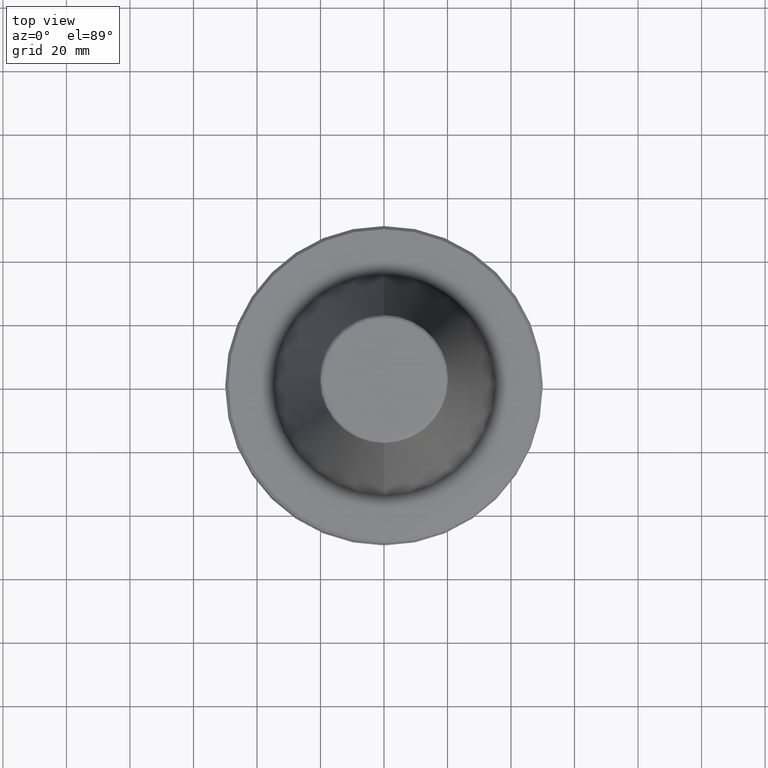
[diagram: clean part render]
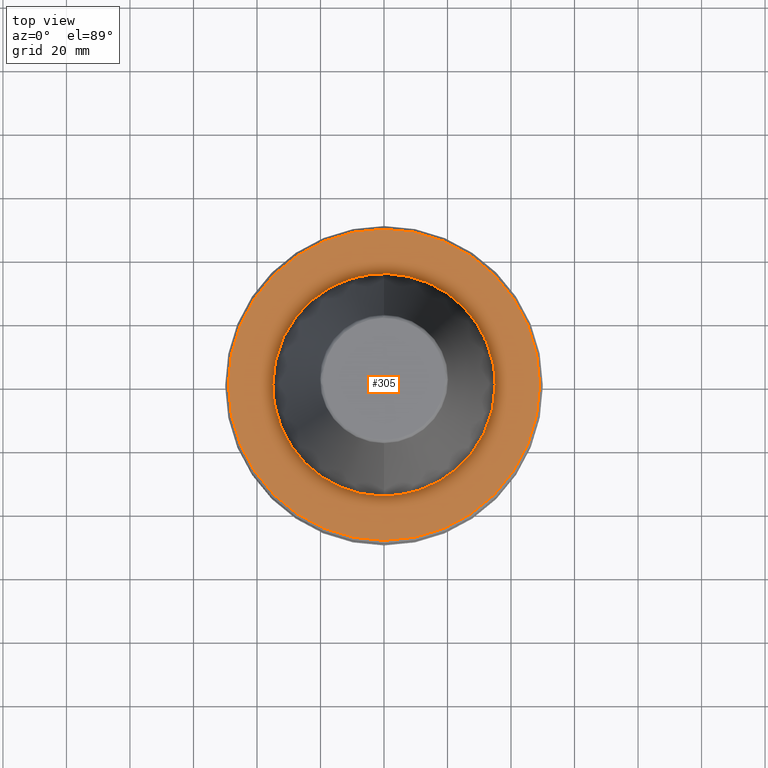
[diagram: same view with one face highlighted and labeled with its STEP entity id]
A machine part, top view. The second image highlights one B-rep face of the part: STEP entity #305.
In plain terms, the highlighted planar face has unit normal (0, 0, -1).
Its self-contained STEP definition (entity closure, byte-faithful):
#5 = CARTESIAN_POINT ( 'NONE',  ( -32.34925436470648200, -13.36287488642944300, -3.000000000000001800 ) ) ;
#28 = CARTESIAN_POINT ( 'NONE',  ( -31.73446283932258200, -14.78360021478252100, -3.000000000000002700 ) ) ;
#34 = CARTESIAN_POINT ( 'NONE',  ( 16.63600605653752500, -30.83358045351049600, -3.000000000000002700 ) ) ;
#38 = CARTESIAN_POINT ( 'NONE',  ( 6.612619497362948600, -34.36979439948081000, -3.000000000000002700 ) ) ;
#44 = CARTESIAN_POINT ( 'NONE',  ( -6.302931150564769600, -34.42781250607536200, -3.000000000000003100 ) ) ;
#50 = CARTESIAN_POINT ( 'NONE',  ( -17.39610456660242100, -30.38102309290583100, -3.000000000000003100 ) ) ;
#63 = CARTESIAN_POINT ( 'NONE',  ( -34.42781351200215300, 6.302925715124958500, -3.000000000000003600 ) ) ;
#64 = CARTESIAN_POINT ( 'NONE',  ( 32.89659264522356400, -11.95665119277901800, -3.000000000000003100 ) ) ;
#65 = CARTESIAN_POINT ( 'NONE',  ( -30.38102309288202100, 17.39610456663885400, -3.000000000000003100 ) ) ;
#66 = CARTESIAN_POINT ( 'NONE',  ( -19.40434002402238500, 29.12865266611658700, -3.000000000000003600 ) ) ;
#74 = CARTESIAN_POINT ( 'NONE',  ( -10.22175398637455700, 33.50799961645684300, -3.000000000000003600 ) ) ;
#77 = CARTESIAN_POINT ( 'NONE',  ( 5.446912988100579300, 34.57544831626905300, -3.000000000000001800 ) ) ;
#80 = CARTESIAN_POINT ( 'NONE',  ( 12.81734826737285200, 32.56864976374770000, -3.000000000000003100 ) ) ;
#84 = CARTESIAN_POINT ( 'NONE',  ( 26.81217425547059100, 22.55396811743030800, -3.000000000000002700 ) ) ;
#90 = CARTESIAN_POINT ( 'NONE',  ( 32.48792099547436200, 13.02062589573488800, -3.000000000000003100 ) ) ;
#94 = EDGE_CURVE ( 'NONE', #1114, #841, #239, .T. ) ;
#96 = CARTESIAN_POINT ( 'NONE',  ( 35.00000000000001400, 2.140594193977155800, -3.000000000000004400 ) ) ;
#98 = CARTESIAN_POINT ( 'NONE',  ( 20.88742035074269100, -28.09581514101870400, -3.000000000000002700 ) ) ;
#105 = CARTESIAN_POINT ( 'NONE',  ( 22.55396811736761400, -26.81217425553328200, -3.000000000000003100 ) ) ;
#109 = CARTESIAN_POINT ( 'NONE',  ( -19.02850814313348600, -29.37552809603244300, -3.000000000000003100 ) ) ;
#110 = CARTESIAN_POINT ( 'NONE',  ( 23.89432606865464900, -25.60312232445126700, -3.000000000000003100 ) ) ;
#112 = CARTESIAN_POINT ( 'NONE',  ( 35.00000000000000000, 0.0000000000000000000, -3.000000000000002700 ) ) ;
#113 = CARTESIAN_POINT ( 'NONE',  ( 34.45762826542809200, -6.138426652641929800, -3.000000000000003600 ) ) ;
#119 = CARTESIAN_POINT ( 'NONE',  ( -19.08913306739620100, -29.33616850064283500, -3.000000000000001800 ) ) ;
#125 = CARTESIAN_POINT ( 'NONE',  ( -32.15012102423657600, -13.83944246703690000, -3.000000000000002700 ) ) ;
#129 = CARTESIAN_POINT ( 'NONE',  ( 13.83944246709859300, -32.15012102419817100, -3.000000000000003100 ) ) ;
#134 = CIRCLE ( 'NONE', #1171, 49.00000000000000000 ) ;
#138 = CARTESIAN_POINT ( 'NONE',  ( 6.438440412634939500, -34.40273028201292500, -3.000000000000002200 ) ) ;
#140 = CARTESIAN_POINT ( 'NONE',  ( -7.485016363404477100, -34.20909465296822600, -3.000000000000002700 ) ) ;
#141 = CARTESIAN_POINT ( 'NONE',  ( -28.70590565858409700, -20.02844726154317800, -3.000000000000003600 ) ) ;
#149 = CARTESIAN_POINT ( 'NONE',  ( -34.20909465294723600, 7.485016363474851000, -3.000000000000003100 ) ) ;
#150 = CARTESIAN_POINT ( 'NONE',  ( 32.63325647696483100, -12.65227526414434500, -3.000000000000003100 ) ) ;
#153 = CARTESIAN_POINT ( 'NONE',  ( -29.57507047212097700, 18.71779649742729400, -3.000000000000002200 ) ) ;
#162 = CARTESIAN_POINT ( 'NONE',  ( -19.21422376116883500, 29.25438685317628500, -3.000000000000003100 ) ) ;
#164 = CARTESIAN_POINT ( 'NONE',  ( -7.341879713376658700, 34.22344429636625300, -3.000000000000003100 ) ) ;
#167 = CARTESIAN_POINT ( 'NONE',  ( 6.138445227317941300, 34.45762482785007600, -3.000000000000003100 ) ) ;
#172 = CARTESIAN_POINT ( 'NONE',  ( 13.98318441544959400, 32.10714343115270700, -3.000000000000003100 ) ) ;
#174 = CARTESIAN_POINT ( 'NONE',  ( 28.70590565853973100, 20.02844726159348800, -3.000000000000002200 ) ) ;
#175 = CARTESIAN_POINT ( 'NONE',  ( 32.52953211022760600, 12.91630117124322500, -3.000000000000002700 ) ) ;
#177 = CARTESIAN_POINT ( 'NONE',  ( 32.10714343114872800, -13.98318441546657300, -3.000000000000002700 ) ) ;
#185 = CARTESIAN_POINT ( 'NONE',  ( 34.49823719593175000, -5.908023099575659700, -3.000000000000002700 ) ) ;
#190 = CARTESIAN_POINT ( 'NONE',  ( 34.57546073590585000, -5.446845879593706000, -3.000000000000003600 ) ) ;
#192 = CARTESIAN_POINT ( 'NONE',  ( -21.17500700316109500, -27.97242343697145700, -3.000000000000002700 ) ) ;
#201 = CARTESIAN_POINT ( 'NONE',  ( -34.32245596807793900, -6.856119198155432100, -3.000000000000003100 ) ) ;
#204 = DIRECTION ( 'NONE',  ( -1.000000000000000000, 0.0000000000000000000, -0.0000000000000000000 ) ) ;
#205 = CARTESIAN_POINT ( 'NONE',  ( -32.48792099547606700, -13.02062589572952200, -3.000000000000002200 ) ) ;
#207 = EDGE_CURVE ( 'NONE', #841, #1114, #1304, .T. ) ;
#214 = CARTESIAN_POINT ( 'NONE',  ( 26.45755988727818700, -23.03996737568499900, -3.000000000000002700 ) ) ;
#217 = CARTESIAN_POINT ( 'NONE',  ( 13.12346891945913500, -32.44664709693408600, -3.000000000000003600 ) ) ;
#219 = CARTESIAN_POINT ( 'NONE',  ( 4.263321196662106500, -34.80526173061283400, -3.000000000000001800 ) ) ;
#220 = CARTESIAN_POINT ( 'NONE',  ( -11.02330659132829500, -33.22749701707316900, -3.000000000000001800 ) ) ;
#226 = CARTESIAN_POINT ( 'NONE',  ( -29.12865266611660100, -19.40434002402422600, -3.000000000000002700 ) ) ;
#238 = CARTESIAN_POINT ( 'NONE',  ( -33.22749701704564300, 11.02330659142064700, -3.000000000000002700 ) ) ;
#239 = B_SPLINE_CURVE_WITH_KNOTS ( 'NONE', 3,
 ( #112, #625, #1358, #827, #190, #185, #113, #1115, #441, #1223, #259, #1037, #360, #64, #776, #150, #348, #1136, #464, #177, #920, #268, #244, #1017, #342, #830, #705, #1373, #214, #110, #105, #98, #298, #959, #1190, #525, #1289, #628, #34, #739, #129, #851, #217, #964, #300, #1084, #414, #1192, #527, #1297, #632, #38, #745, #138, #855, #219, #972, #303, #1089, #422, #1197, #532, #1300, #636, #44, #748, #140, #863, #220, #977, #309, #1093, #425, #1200, #539, #1305, #638, #50, #751, #279, #709, #109, #119, #192, #939, #944, #1329, #563, #141, #868, #226, #981, #311, #512, #950, #28, #125, #5, #838, #205, #821, #1236, #604, #1280, #617, #1071, #201, #833, #1179, #845, #406, #731, #403, #1186 ),
 .UNSPECIFIED., .F., .F.,
 ( 4, 1, 1, 1, 1, 1, 2, 2, 1, 1, 1, 1, 1, 2, 2, 1, 1, 1, 1, 2, 2, 2, 1, 1, 1, 1, 2, 2, 1, 1, 1, 1, 1, 2, 2, 1, 1, 1, 1, 1, 2, 2, 2, 1, 1, 1, 1, 1, 2, 2, 1, 1, 1, 1, 1, 2, 2, 1, 1, 1, 1, 2, 2, 2, 1, 1, 1, 1, 2, 2, 1, 1, 1, 1, 1, 2, 2, 1, 1, 1, 1, 1, 2, 2, 4 ),
 ( 0.0000000000000000000, 0.03124999999999663500, 0.04687499999999496200, 0.05468749999999411600, 0.05859374999999367900, 0.06054687499999345700, 0.06152343749999333200, 0.06249999999999320700, 0.09374999999998945300, 0.1093749999999875700, 0.1171874999999866100, 0.1210937499999861100, 0.1230468749999859300, 0.1240234374999858700, 0.1249999999999858000, 0.1562499999999837400, 0.1718749999999827600, 0.1796874999999822900, 0.1835937499999820700, 0.1855468749999819900, 0.1874999999999819000, 0.2499999999999803500, 0.2812499999999796300, 0.2968749999999792900, 0.3046874999999791800, 0.3085937499999790700, 0.3105468749999791300, 0.3124999999999791300, 0.3437499999999789600, 0.3593749999999787900, 0.3671874999999787400, 0.3710937499999786800, 0.3730468749999786300, 0.3740234374999786300, 0.3749999999999786300, 0.4062499999999783500, 0.4218749999999781800, 0.4296874999999780200, 0.4335937499999780200, 0.4355468749999780200, 0.4365234374999780200, 0.4374999999999780200, 0.4999999999999799000, 0.5312499999999809000, 0.5468749999999813500, 0.5546874999999815700, 0.5585937499999816800, 0.5605468749999816800, 0.5615234374999816800, 0.5624999999999816800, 0.5937499999999827900, 0.6093749999999832400, 0.6171874999999834600, 0.6210937499999836800, 0.6230468749999837900, 0.6240234374999837900, 0.6249999999999837900, 0.6562499999999863400, 0.6718749999999875700, 0.6796874999999883400, 0.6835937499999886800, 0.6855468749999887900, 0.6874999999999889000, 0.7499999999999902300, 0.7812499999999909000, 0.7968749999999912300, 0.8046874999999913400, 0.8085937499999915600, 0.8105468749999916700, 0.8124999999999917800, 0.8437499999999927800, 0.8593749999999931200, 0.8671874999999933400, 0.8710937499999934500, 0.8730468749999934500, 0.8740234374999934500, 0.8749999999999934500, 0.9062499999999948900, 0.9218749999999955600, 0.9296874999999958900, 0.9335937499999961100, 0.9355468749999963400, 0.9365234374999963400, 0.9374999999999963400, 1.000000000000000000 ),
 .UNSPECIFIED. ) ;
#241 = CARTESIAN_POINT ( 'NONE',  ( -29.37552809603019800, 19.02850814313690000, -3.000000000000003600 ) ) ;
#243 = CARTESIAN_POINT ( 'NONE',  ( -16.63600605646529500, 30.83358045356212400, -3.000000000000003600 ) ) ;
#244 = CARTESIAN_POINT ( 'NONE',  ( 29.84950969864552300, -18.28024207344085600, -3.000000000000003600 ) ) ;
#250 = CARTESIAN_POINT ( 'NONE',  ( -6.612619497348228800, 34.36979439948396500, -3.000000000000003600 ) ) ;
#254 = EDGE_CURVE ( 'NONE', #270, #395, #134, .T. ) ;
#255 = CARTESIAN_POINT ( 'NONE',  ( 6.302931150571177800, 34.42781250607494300, -3.000000000000003100 ) ) ;
#257 = CARTESIAN_POINT ( 'NONE',  ( 17.39610456662463300, 30.38102309288199300, -3.000000000000003100 ) ) ;
#259 = CARTESIAN_POINT ( 'NONE',  ( 34.20909465294850800, -7.485016363475470900, -3.000000000000004000 ) ) ;
#260 = CARTESIAN_POINT ( 'NONE',  ( 29.12865266610268500, 19.40434002404001000, -3.000000000000003100 ) ) ;
#265 = CARTESIAN_POINT ( 'NONE',  ( 33.50799961647769000, 10.22175398628584700, -3.000000000000003100 ) ) ;
#268 = CARTESIAN_POINT ( 'NONE',  ( 30.38102309287676000, -17.39610456664685500, -3.000000000000002200 ) ) ;
#270 = VERTEX_POINT ( 'NONE', #386 ) ;
#279 = CARTESIAN_POINT ( 'NONE',  ( -18.71779649741590400, -29.57507047212841700, -3.000000000000001800 ) ) ;
#298 = CARTESIAN_POINT ( 'NONE',  ( 20.02844726156606800, -28.70590565856717900, -3.000000000000003100 ) ) ;
#300 = CARTESIAN_POINT ( 'NONE',  ( 12.95201044294124100, -32.51533340697019300, -3.000000000000003100 ) ) ;
#303 = CARTESIAN_POINT ( 'NONE',  ( -1.070562519032676000, -34.99998377844058000, -3.000000000000002200 ) ) ;
#305 = ADVANCED_FACE ( 'NONE', ( #356, #393 ), #1068, .F. ) ;
#308 = EDGE_LOOP ( 'NONE', ( #1264, #524 ) ) ;
#309 = CARTESIAN_POINT ( 'NONE',  ( -12.42081813362705100, -32.72247880823924500, -3.000000000000002200 ) ) ;
#311 = CARTESIAN_POINT ( 'NONE',  ( -29.25438685317497400, -19.21422376117129400, -3.000000000000002200 ) ) ;
#316 = CARTESIAN_POINT ( 'NONE',  ( -35.00000000000000000, 5.347315839772332600E-015, -3.000000000000002700 ) ) ;
#325 = CARTESIAN_POINT ( 'NONE',  ( -32.72247880823064700, 12.42081813365590500, -3.000000000000002700 ) ) ;
#331 = CARTESIAN_POINT ( 'NONE',  ( -27.97242343694205100, 21.17500700320606600, -3.000000000000003100 ) ) ;
#340 = CARTESIAN_POINT ( 'NONE',  ( -13.83944246706697900, 32.15012102422075900, -3.000000000000002200 ) ) ;
#342 = CARTESIAN_POINT ( 'NONE',  ( 29.45559311873443400, -18.90435246569474300, -3.000000000000003100 ) ) ;
#346 = CARTESIAN_POINT ( 'NONE',  ( -6.438440412630628300, 34.40273028201387700, -3.000000000000003600 ) ) ;
#348 = CARTESIAN_POINT ( 'NONE',  ( 32.59455431797136500, -12.75133696150703600, -3.000000000000003600 ) ) ;
#351 = CARTESIAN_POINT ( 'NONE',  ( 7.485016363517791800, 34.20909465293439000, -3.000000000000003100 ) ) ;
#356 = FACE_BOUND ( 'NONE', #589, .T. ) ;
#357 = CARTESIAN_POINT ( 'NONE',  ( 18.71779649742284900, 29.57507047212097700, -3.000000000000003100 ) ) ;
#360 = CARTESIAN_POINT ( 'NONE',  ( 33.22749701704729800, -11.02330659142144900, -3.000000000000002200 ) ) ;
#363 = CARTESIAN_POINT ( 'NONE',  ( 29.25438685317584800, 19.21422376116857600, -3.000000000000003100 ) ) ;
#367 = CARTESIAN_POINT ( 'NONE',  ( 34.22344429637538400, 7.341879713337862200, -3.000000000000003100 ) ) ;
#383 = CARTESIAN_POINT ( 'NONE',  ( 0.0000000000000000000, -8.673617379884097100E-018, -2.999999999999988900 ) ) ;
#386 = CARTESIAN_POINT ( 'NONE',  ( 6.062001655779398500E-015, -49.00000000000000000, -2.999999999999989300 ) ) ;
#393 = FACE_OUTER_BOUND ( 'NONE', #308, .T. ) ;
#395 = VERTEX_POINT ( 'NONE', #1368 ) ;
#402 = AXIS2_PLACEMENT_3D ( 'NONE', #519, #514, #510 ) ;
#403 = CARTESIAN_POINT ( 'NONE',  ( -35.00000000000000700, -2.140594194092448900, -3.000000000000002700 ) ) ;
#406 = CARTESIAN_POINT ( 'NONE',  ( -34.40960131014864500, -6.401600746334303900, -3.000000000000002700 ) ) ;
#414 = CARTESIAN_POINT ( 'NONE',  ( 11.82775206430019400, -32.96046019979726800, -3.000000000000003100 ) ) ;
#422 = CARTESIAN_POINT ( 'NONE',  ( -4.523126027250998300, -34.71390924092476400, -3.000000000000002700 ) ) ;
#425 = CARTESIAN_POINT ( 'NONE',  ( -12.75133696149833700, -32.59455431797377400, -3.000000000000002700 ) ) ;
#439 = CARTESIAN_POINT ( 'NONE',  ( -34.71393053172151600, 4.523010984241379300, -3.000000000000003100 ) ) ;
#441 = CARTESIAN_POINT ( 'NONE',  ( 34.42781351200215300, -6.302925715124505500, -3.000000000000003600 ) ) ;
#447 = CARTESIAN_POINT ( 'NONE',  ( -32.59455431797121600, 12.75133696150694700, -3.000000000000002700 ) ) ;
#454 = CARTESIAN_POINT ( 'NONE',  ( -23.89432606861711500, 25.60312232447323300, -3.000000000000003100 ) ) ;
#456 = CARTESIAN_POINT ( 'NONE',  ( -13.12346891945037800, 32.44664709694033200, -3.000000000000003100 ) ) ;
#461 = CARTESIAN_POINT ( 'NONE',  ( -4.263321196565859100, 34.80526173062684600, -3.000000000000002200 ) ) ;
#464 = CARTESIAN_POINT ( 'NONE',  ( 32.55619825924868100, -12.84894391026552900, -3.000000000000002200 ) ) ;
#470 = CARTESIAN_POINT ( 'NONE',  ( 11.02330659147702200, 33.22749701702875300, -3.000000000000002700 ) ) ;
#475 = CARTESIAN_POINT ( 'NONE',  ( 19.02850814313557100, 29.37552809603019800, -3.000000000000003100 ) ) ;
#477 = CARTESIAN_POINT ( 'NONE',  ( 30.83358045357390900, 16.63600605647301800, -3.000000000000002700 ) ) ;
#481 = CARTESIAN_POINT ( 'NONE',  ( 34.36979439948648000, 6.612619497337481000, -3.000000000000003600 ) ) ;
#494 = DIRECTION ( 'NONE',  ( 0.0000000000000000000, 1.000000000000000000, 8.850629979473505400E-018 ) ) ;
#509 = CARTESIAN_POINT ( 'NONE',  ( 0.0000000000000000000, 35.00000000000000000, -3.000000000000002700 ) ) ;
#510 = DIRECTION ( 'NONE',  ( 0.0000000000000000000, 1.000000000000000000, 8.850629979473505400E-018 ) ) ;
#512 = CARTESIAN_POINT ( 'NONE',  ( -29.94213952429791100, -18.16222308541903300, -3.000000000000003100 ) ) ;
#514 = DIRECTION ( 'NONE',  ( 0.0000000000000000000, 8.673617379884035500E-018, -1.000000000000000000 ) ) ;
#519 = CARTESIAN_POINT ( 'NONE',  ( 0.0000000000000000000, -8.673617379884097100E-018, -2.999999999999988900 ) ) ;
#524 = ORIENTED_EDGE ( 'NONE', *, *, #254, .F. ) ;
#525 = CARTESIAN_POINT ( 'NONE',  ( 19.27857015345090000, -29.21203108228558400, -3.000000000000001800 ) ) ;
#527 = CARTESIAN_POINT ( 'NONE',  ( 8.308445198443276800, -34.00808171725491700, -3.000000000000002700 ) ) ;
#532 = CARTESIAN_POINT ( 'NONE',  ( -5.908059050519048200, -34.49823054255777100, -3.000000000000002700 ) ) ;
#539 = CARTESIAN_POINT ( 'NONE',  ( -12.84894391026660200, -32.55619825924799900, -3.000000000000003600 ) ) ;
#541 = ORIENTED_EDGE ( 'NONE', *, *, #207, .T. ) ;
#560 = CARTESIAN_POINT ( 'NONE',  ( -34.49823719593176500, 5.908023099578546300, -3.000000000000003600 ) ) ;
#563 = CARTESIAN_POINT ( 'NONE',  ( -28.09581514104771900, -20.88742035070345100, -3.000000000000002700 ) ) ;
#565 = CARTESIAN_POINT ( 'NONE',  ( -32.55619825924858200, 12.84894391026571500, -3.000000000000003100 ) ) ;
#570 = CARTESIAN_POINT ( 'NONE',  ( -20.88742035069342500, 28.09581514104753500, -3.000000000000003100 ) ) ;
#573 = CARTESIAN_POINT ( 'NONE',  ( -12.95201044293867400, 32.51533340697202600, -3.000000000000003600 ) ) ;
#576 = CARTESIAN_POINT ( 'NONE',  ( 1.070562519136141000, 34.99998377843357400, -3.000000000000002700 ) ) ;
#580 = CARTESIAN_POINT ( 'NONE',  ( 12.42081813367351900, 32.72247880822539700, -3.000000000000002700 ) ) ;
#583 = CARTESIAN_POINT ( 'NONE',  ( 21.17500700307416400, 27.97242343704284200, -3.000000000000003100 ) ) ;
#589 = EDGE_LOOP ( 'NONE', ( #993, #541 ) ) ;
#590 = CARTESIAN_POINT ( 'NONE',  ( 32.15012102422590300, 13.83944246707036300, -3.000000000000003100 ) ) ;
#596 = CARTESIAN_POINT ( 'NONE',  ( 34.40273028201460200, 6.438440412627483200, -3.000000000000001300 ) ) ;
#604 = CARTESIAN_POINT ( 'NONE',  ( -32.96046019979995400, -11.82775206424915600, -3.000000000000003100 ) ) ;
#617 = CARTESIAN_POINT ( 'NONE',  ( -34.00808171725844200, -8.308445198376258400, -3.000000000000002700 ) ) ;
#625 = CARTESIAN_POINT ( 'NONE',  ( 35.00000000000000700, -1.070474867208797800, -3.000000000000004000 ) ) ;
#628 = CARTESIAN_POINT ( 'NONE',  ( 18.16222308549961200, -29.94213952424776100, -3.000000000000003100 ) ) ;
#632 = CARTESIAN_POINT ( 'NONE',  ( 6.856119198176373600, -34.32245596807681000, -3.000000000000003100 ) ) ;
#636 = CARTESIAN_POINT ( 'NONE',  ( -6.237142119956468300, -34.43979448701008300, -3.000000000000003600 ) ) ;
#638 = CARTESIAN_POINT ( 'NONE',  ( -15.59171491773484600, -31.37458964609368600, -3.000000000000003100 ) ) ;
#659 = CARTESIAN_POINT ( 'NONE',  ( -34.43979647510160200, 6.237131377473057900, -3.000000000000002700 ) ) ;
#664 = CARTESIAN_POINT ( 'NONE',  ( -31.37458964606191400, 15.59171491778343300, -3.000000000000003100 ) ) ;
#669 = CIRCLE ( 'NONE', #402, 49.00000000000000000 ) ;
#671 = CARTESIAN_POINT ( 'NONE',  ( -19.59253591549630600, 29.00301843605185700, -3.000000000000002700 ) ) ;
#677 = CARTESIAN_POINT ( 'NONE',  ( -11.82775206423072900, 32.96046019981214700, -3.000000000000003100 ) ) ;
#681 = CARTESIAN_POINT ( 'NONE',  ( 4.523126027386807900, 34.71390924091556900, -3.000000000000002700 ) ) ;
#684 = CARTESIAN_POINT ( 'NONE',  ( 12.75133696151221100, 32.59455431796963900, -3.000000000000003600 ) ) ;
#689 = CARTESIAN_POINT ( 'NONE',  ( 25.60312232441545500, 23.89432606869046400, -3.000000000000002700 ) ) ;
#694 = CARTESIAN_POINT ( 'NONE',  ( 32.44664709694176700, 13.12346891945131600, -3.000000000000003100 ) ) ;
#698 = CARTESIAN_POINT ( 'NONE',  ( 34.80522929819337500, 4.263496472118814200, -3.000000000000003600 ) ) ;
#705 = CARTESIAN_POINT ( 'NONE',  ( 29.33616850064192500, -19.08913306739760400, -3.000000000000003100 ) ) ;
#709 = CARTESIAN_POINT ( 'NONE',  ( -18.90435246568660300, -29.45559311873974600, -3.000000000000001800 ) ) ;
#731 = CARTESIAN_POINT ( 'NONE',  ( -34.80522929819336000, -4.263496472234200100, -3.000000000000003600 ) ) ;
#739 = CARTESIAN_POINT ( 'NONE',  ( 14.78360021488826500, -31.73446283925677500, -3.000000000000002700 ) ) ;
#745 = CARTESIAN_POINT ( 'NONE',  ( 6.508129744902905900, -34.38961785484172400, -3.000000000000002700 ) ) ;
#748 = CARTESIAN_POINT ( 'NONE',  ( -6.333822161644473400, -34.42214393338047500, -3.000000000000002700 ) ) ;
#751 = CARTESIAN_POINT ( 'NONE',  ( -18.28024207341493600, -29.84950969866246200, -3.000000000000002700 ) ) ;
#765 = CARTESIAN_POINT ( 'NONE',  ( 35.00000000000000000, 0.0000000000000000000, -3.000000000000002700 ) ) ;
#769 = CARTESIAN_POINT ( 'NONE',  ( -35.00000000000001400, 1.070474867215826600, -3.000000000000002700 ) ) ;
#774 = CARTESIAN_POINT ( 'NONE',  ( -34.42214393338114300, 6.333822161642274300, -3.000000000000003100 ) ) ;
#776 = CARTESIAN_POINT ( 'NONE',  ( 32.72247880823116600, -12.42081813365616600, -3.000000000000003100 ) ) ;
#779 = CARTESIAN_POINT ( 'NONE',  ( -29.84950969864856100, 18.28024207343620600, -3.000000000000003100 ) ) ;
#783 = CARTESIAN_POINT ( 'NONE',  ( -19.27857015344629200, 29.21203108228828800, -3.000000000000003100 ) ) ;
#785 = CARTESIAN_POINT ( 'NONE',  ( -8.308445198352108800, 34.00808171727444300, -3.000000000000002700 ) ) ;
#791 = CARTESIAN_POINT ( 'NONE',  ( 5.908059050561483600, 34.49823054255489300, -3.000000000000002200 ) ) ;
#798 = CARTESIAN_POINT ( 'NONE',  ( 12.84894391026604800, 32.55619825924858200, -3.000000000000002700 ) ) ;
#802 = CARTESIAN_POINT ( 'NONE',  ( 28.09581514097168100, 20.88742035078972100, -3.000000000000003100 ) ) ;
#806 = CARTESIAN_POINT ( 'NONE',  ( 32.51533340697245900, 12.95201044293895400, -3.000000000000004000 ) ) ;
#811 = CARTESIAN_POINT ( 'NONE',  ( 35.00000000000000000, 0.0000000000000000000, -3.000000000000002700 ) ) ;
#821 = CARTESIAN_POINT ( 'NONE',  ( -32.51533340697329800, -12.95201044293623500, -3.000000000000002700 ) ) ;
#827 = CARTESIAN_POINT ( 'NONE',  ( 34.71393053172150900, -4.523010984232165300, -3.000000000000003100 ) ) ;
#830 = CARTESIAN_POINT ( 'NONE',  ( 29.37552809602970400, -19.02850814313765300, -3.000000000000003100 ) ) ;
#833 = CARTESIAN_POINT ( 'NONE',  ( -34.36979439948136400, -6.612619497352139500, -3.000000000000001300 ) ) ;
#835 = DIRECTION ( 'NONE',  ( 0.0000000000000000000, 0.0000000000000000000, -1.000000000000000000 ) ) ;
#838 = CARTESIAN_POINT ( 'NONE',  ( -32.44664709694470900, -13.12346891944205400, -3.000000000000002700 ) ) ;
#841 = VERTEX_POINT ( 'NONE', #958 ) ;
#845 = CARTESIAN_POINT ( 'NONE',  ( -34.40273028201311700, -6.438440412631782000, -3.000000000000002700 ) ) ;
#851 = CARTESIAN_POINT ( 'NONE',  ( 13.36287488646249200, -32.34925436468589100, -3.000000000000001800 ) ) ;
#855 = CARTESIAN_POINT ( 'NONE',  ( 6.401603485015114900, -34.40960080339209500, -3.000000000000003100 ) ) ;
#863 = CARTESIAN_POINT ( 'NONE',  ( -9.136574510169092300, -33.82001255208494700, -3.000000000000003100 ) ) ;
#868 = CARTESIAN_POINT ( 'NONE',  ( -29.00301843605190700, -19.59253591549944000, -3.000000000000003100 ) ) ;
#885 = CARTESIAN_POINT ( 'NONE',  ( -33.82001255204822600, 9.136574510292236400, -3.000000000000003100 ) ) ;
#889 = CARTESIAN_POINT ( 'NONE',  ( -29.45559311873539700, 18.90435246569326800, -3.000000000000003100 ) ) ;
#894 = CARTESIAN_POINT ( 'NONE',  ( -18.16222308545833600, 29.94213952427724800, -3.000000000000002200 ) ) ;
#900 = CARTESIAN_POINT ( 'NONE',  ( -6.856119198147877300, 34.32245596808292700, -3.000000000000003100 ) ) ;
#902 = CARTESIAN_POINT ( 'NONE',  ( 6.237142119969139000, 34.43979448700921600, -3.000000000000003100 ) ) ;
#904 = CARTESIAN_POINT ( 'NONE',  ( 15.59171491776445100, 31.37458964606188500, -3.000000000000002700 ) ) ;
#912 = CARTESIAN_POINT ( 'NONE',  ( 29.00301843602813900, 19.59253591552640500, -3.000000000000003600 ) ) ;
#918 = CARTESIAN_POINT ( 'NONE',  ( 32.96046019982407000, 11.82775206418003900, -3.000000000000003600 ) ) ;
#920 = CARTESIAN_POINT ( 'NONE',  ( 31.37458964605490400, -15.59171491779412700, -3.000000000000002200 ) ) ;
#939 = CARTESIAN_POINT ( 'NONE',  ( -23.03996737564074900, -26.45755988733801100, -3.000000000000002700 ) ) ;
#944 = CARTESIAN_POINT ( 'NONE',  ( -25.60312232447337900, -23.89432606862475700, -3.000000000000004000 ) ) ;
#950 = CARTESIAN_POINT ( 'NONE',  ( -30.83358045359825200, -16.63600605639656000, -3.000000000000003100 ) ) ;
#958 = CARTESIAN_POINT ( 'NONE',  ( -35.00000000000000000, 5.347315839772332600E-015, -3.000000000000002700 ) ) ;
#959 = CARTESIAN_POINT ( 'NONE',  ( 19.59253591551169600, -29.00301843604283300, -3.000000000000001800 ) ) ;
#964 = CARTESIAN_POINT ( 'NONE',  ( 13.02062589573940900, -32.48792099546991400, -3.000000000000002700 ) ) ;
#972 = CARTESIAN_POINT ( 'NONE',  ( 2.141125038065310200, -35.00003244311884700, -3.000000000000002200 ) ) ;
#977 = CARTESIAN_POINT ( 'NONE',  ( -11.95665119272467800, -32.89659264523868400, -3.000000000000002700 ) ) ;
#981 = CARTESIAN_POINT ( 'NONE',  ( -29.21203108228828800, -19.27857015344723000, -3.000000000000002700 ) ) ;
#993 = ORIENTED_EDGE ( 'NONE', *, *, #94, .T. ) ;
#999 = CARTESIAN_POINT ( 'NONE',  ( -32.89659264522261900, 11.95665119277852600, -3.000000000000003100 ) ) ;
#1008 = CARTESIAN_POINT ( 'NONE',  ( -29.33616850064376500, 19.08913306739479400, -3.000000000000003100 ) ) ;
#1014 = CARTESIAN_POINT ( 'NONE',  ( -14.78360021483408600, 31.73446283929548500, -3.000000000000003100 ) ) ;
#1017 = CARTESIAN_POINT ( 'NONE',  ( 29.57507047211932900, -18.71779649742980200, -3.000000000000003100 ) ) ;
#1022 = CARTESIAN_POINT ( 'NONE',  ( -6.508129744894392700, 34.38961785484356400, -3.000000000000003600 ) ) ;
#1027 = CARTESIAN_POINT ( 'NONE',  ( 6.333822161640920700, 34.42214393338153400, -3.000000000000002700 ) ) ;
#1034 = CARTESIAN_POINT ( 'NONE',  ( 18.28024207342790300, 29.84950969864856100, -3.000000000000003100 ) ) ;
#1037 = CARTESIAN_POINT ( 'NONE',  ( 33.82001255205042200, -9.136574510293330700, -3.000000000000002200 ) ) ;
#1039 = CARTESIAN_POINT ( 'NONE',  ( 29.21203108228115800, 19.27857015345532700, -3.000000000000004000 ) ) ;
#1043 = CARTESIAN_POINT ( 'NONE',  ( 34.00808171729007500, 8.308445198285568300, -3.000000000000002700 ) ) ;
#1068 = PLANE ( 'NONE',  #1177 ) ;
#1071 = CARTESIAN_POINT ( 'NONE',  ( -34.22344429635691700, -7.341879713390761200, -3.000000000000001800 ) ) ;
#1084 = CARTESIAN_POINT ( 'NONE',  ( 12.91630117123947700, -32.52953211022842300, -3.000000000000002700 ) ) ;
#1089 = CARTESIAN_POINT ( 'NONE',  ( -2.669572762610316700, -34.92693259909351900, -3.000000000000003600 ) ) ;
#1093 = CARTESIAN_POINT ( 'NONE',  ( -12.65227526412929200, -32.63325647696902400, -3.000000000000002700 ) ) ;
#1112 = CARTESIAN_POINT ( 'NONE',  ( -34.92696098682252900, 2.669419371930827500, -3.000000000000002700 ) ) ;
#1114 = VERTEX_POINT ( 'NONE', #765 ) ;
#1115 = CARTESIAN_POINT ( 'NONE',  ( 34.43979647510159500, -6.237131377472181300, -3.000000000000002700 ) ) ;
#1121 = CARTESIAN_POINT ( 'NONE',  ( -32.63325647696455400, 12.65227526414419400, -3.000000000000003100 ) ) ;
#1124 = CARTESIAN_POINT ( 'NONE',  ( -26.45755988735327300, 23.03996737564107600, -3.000000000000002700 ) ) ;
#1125 = CARTESIAN_POINT ( 'NONE',  ( -13.36287488644556200, 32.34925436469802700, -3.000000000000003100 ) ) ;
#1134 = CARTESIAN_POINT ( 'NONE',  ( -6.401603485016614100, 34.40960080339188200, -3.000000000000002700 ) ) ;
#1136 = CARTESIAN_POINT ( 'NONE',  ( 32.56864976374856700, -12.81734826737023900, -3.000000000000002700 ) ) ;
#1139 = CARTESIAN_POINT ( 'NONE',  ( 9.136574510367397700, 33.82001255202570200, -3.000000000000002700 ) ) ;
#1145 = CARTESIAN_POINT ( 'NONE',  ( 18.90435246569067500, 29.45559311873539300, -3.000000000000002700 ) ) ;
#1147 = CARTESIAN_POINT ( 'NONE',  ( 29.94213952428398800, 18.16222308546275200, -3.000000000000003100 ) ) ;
#1152 = CARTESIAN_POINT ( 'NONE',  ( 34.32245596808781600, 6.856119198127095700, -3.000000000000003600 ) ) ;
#1166 = DIRECTION ( 'NONE',  ( 0.0000000000000000000, 8.673617379884035500E-018, -1.000000000000000000 ) ) ;
#1171 = AXIS2_PLACEMENT_3D ( 'NONE', #383, #1166, #494 ) ;
#1177 = AXIS2_PLACEMENT_3D ( 'NONE', #509, #835, #204 ) ;
#1179 = CARTESIAN_POINT ( 'NONE',  ( -34.38961785484204400, -6.508129744896657500, -3.000000000000002200 ) ) ;
#1186 = CARTESIAN_POINT ( 'NONE',  ( -35.00000000000000000, 5.347315839772332600E-015, -3.000000000000002700 ) ) ;
#1190 = CARTESIAN_POINT ( 'NONE',  ( 19.40434002403140200, -29.12865266611132900, -3.000000000000003100 ) ) ;
#1192 = CARTESIAN_POINT ( 'NONE',  ( 10.22175398649610400, -33.50799961643082300, -3.000000000000003600 ) ) ;
#1197 = CARTESIAN_POINT ( 'NONE',  ( -5.446912988021364500, -34.57544831627442500, -3.000000000000002700 ) ) ;
#1200 = CARTESIAN_POINT ( 'NONE',  ( -12.81734826736584900, -32.56864976374979600, -3.000000000000003100 ) ) ;
#1221 = CARTESIAN_POINT ( 'NONE',  ( -34.57546073590584300, 5.446845879599084000, -3.000000000000002700 ) ) ;
#1223 = CARTESIAN_POINT ( 'NONE',  ( 34.42214393338109300, -6.333822161642247700, -3.000000000000002200 ) ) ;
#1225 = CARTESIAN_POINT ( 'NONE',  ( -32.56864976374851000, 12.81734826737019400, -3.000000000000002700 ) ) ;
#1232 = CARTESIAN_POINT ( 'NONE',  ( -22.55396811730192000, 26.81217425557173000, -3.000000000000002700 ) ) ;
#1236 = CARTESIAN_POINT ( 'NONE',  ( -32.52953211022834500, -12.91630117124105800, -3.000000000000002700 ) ) ;
#1240 = CARTESIAN_POINT ( 'NONE',  ( -13.02062589573434300, 32.48792099547353000, -3.000000000000002700 ) ) ;
#1242 = CARTESIAN_POINT ( 'NONE',  ( -2.141125038272311700, 35.00003244313286600, -3.000000000000002700 ) ) ;
#1246 = CARTESIAN_POINT ( 'NONE',  ( 11.95665119281142300, 32.89659264521277000, -3.000000000000003600 ) ) ;
#1252 = CARTESIAN_POINT ( 'NONE',  ( 19.08913306739893300, 29.33616850064062100, -3.000000000000003600 ) ) ;
#1256 = CARTESIAN_POINT ( 'NONE',  ( 31.73446283930433200, 14.78360021483987700, -3.000000000000003600 ) ) ;
#1258 = CARTESIAN_POINT ( 'NONE',  ( 34.38961785484501400, 6.508129744888179900, -3.000000000000003100 ) ) ;
#1263 = EDGE_CURVE ( 'NONE', #395, #270, #669, .T. ) ;
#1264 = ORIENTED_EDGE ( 'NONE', *, *, #1263, .F. ) ;
#1280 = CARTESIAN_POINT ( 'NONE',  ( -33.50799961643552600, -10.22175398640678300, -3.000000000000002700 ) ) ;
#1289 = CARTESIAN_POINT ( 'NONE',  ( 19.21422376116625200, -29.25438685317812900, -3.000000000000002200 ) ) ;
#1297 = CARTESIAN_POINT ( 'NONE',  ( 7.341879713429841900, -34.22344429635485600, -3.000000000000002700 ) ) ;
#1300 = CARTESIAN_POINT ( 'NONE',  ( -6.138445227296025500, -34.45762482785154600, -3.000000000000003600 ) ) ;
#1304 = B_SPLINE_CURVE_WITH_KNOTS ( 'NONE', 3,
 ( #316, #769, #1112, #439, #1221, #560, #1325, #659, #63, #774, #149, #885, #238, #999, #325, #1121, #447, #1225, #565, #1334, #664, #65, #779, #153, #889, #241, #1008, #331, #1124, #454, #1232, #570, #1340, #671, #66, #783, #162, #894, #243, #1014, #340, #1125, #456, #1240, #573, #1344, #677, #74, #785, #164, #900, #250, #1022, #346, #1134, #461, #1242, #576, #1349, #681, #77, #791, #167, #902, #255, #1027, #351, #1139, #470, #1246, #580, #1356, #684, #80, #798, #172, #904, #257, #1034, #357, #1145, #475, #1252, #583, #1360, #689, #84, #802, #174, #912, #260, #1039, #363, #1147, #477, #1256, #590, #1363, #694, #90, #806, #175, #918, #265, #1043, #367, #1152, #481, #1258, #596, #1367, #698, #96, #811 ),
 .UNSPECIFIED., .F., .F.,
 ( 4, 1, 1, 1, 1, 1, 2, 2, 1, 1, 1, 1, 1, 2, 2, 1, 1, 1, 1, 2, 2, 2, 1, 1, 1, 1, 2, 2, 1, 1, 1, 1, 1, 2, 2, 1, 1, 1, 1, 1, 2, 2, 2, 1, 1, 1, 1, 1, 2, 2, 1, 1, 1, 1, 1, 2, 2, 1, 1, 1, 1, 2, 2, 2, 1, 1, 1, 1, 2, 2, 1, 1, 1, 1, 1, 2, 2, 1, 1, 1, 1, 1, 2, 2, 4 ),
 ( 0.0000000000000000000, 0.03125000000000095800, 0.04687500000000145000, 0.05468750000000170000, 0.05859375000000181800, 0.06054687500000186000, 0.06152343750000188000, 0.06250000000000188700, 0.09375000000000212300, 0.1093750000000022100, 0.1171875000000022600, 0.1210937500000022800, 0.1230468750000022600, 0.1240234375000022200, 0.1250000000000021600, 0.1562500000000011700, 0.1718750000000006700, 0.1796875000000003600, 0.1835937500000002200, 0.1855468750000001400, 0.1875000000000000600, 0.2499999999999976100, 0.2812499999999962300, 0.2968749999999955000, 0.3046874999999951200, 0.3085937499999948900, 0.3105468749999947800, 0.3124999999999946700, 0.3437499999999934500, 0.3593749999999928400, 0.3671874999999926200, 0.3710937499999925100, 0.3730468749999925100, 0.3740234374999924500, 0.3749999999999924500, 0.4062499999999912800, 0.4218749999999907300, 0.4296874999999904500, 0.4335937499999902900, 0.4355468749999902300, 0.4365234374999902300, 0.4374999999999901700, 0.4999999999999894000, 0.5312499999999890100, 0.5468749999999887900, 0.5546874999999886800, 0.5585937499999886800, 0.5605468749999886800, 0.5615234374999886800, 0.5624999999999886800, 0.5937499999999884500, 0.6093749999999882300, 0.6171874999999881200, 0.6210937499999880100, 0.6230468749999880100, 0.6240234374999880100, 0.6249999999999880100, 0.6562499999999876800, 0.6718749999999874500, 0.6796874999999874500, 0.6835937499999874500, 0.6855468749999873400, 0.6874999999999873400, 0.7499999999999870100, 0.7812499999999869000, 0.7968749999999867900, 0.8046874999999866800, 0.8085937499999866800, 0.8105468749999867900, 0.8124999999999867900, 0.8437499999999874500, 0.8593749999999877900, 0.8671874999999880100, 0.8710937499999881200, 0.8730468749999882300, 0.8740234374999882300, 0.8749999999999882300, 0.9062499999999914500, 0.9218749999999928900, 0.9296874999999937800, 0.9335937499999941200, 0.9355468749999942300, 0.9365234374999943400, 0.9374999999999945600, 1.000000000000000000 ),
 .UNSPECIFIED. ) ;
#1305 = CARTESIAN_POINT ( 'NONE',  ( -13.98318441543271400, -32.10714343117086100, -3.000000000000002700 ) ) ;
#1325 = CARTESIAN_POINT ( 'NONE',  ( -34.45762826542810600, 6.138426652643423700, -3.000000000000002700 ) ) ;
#1329 = CARTESIAN_POINT ( 'NONE',  ( -26.81217425557199300, -22.55396811731530300, -3.000000000000002700 ) ) ;
#1334 = CARTESIAN_POINT ( 'NONE',  ( -32.10714343115271400, 13.98318441546045300, -3.000000000000002700 ) ) ;
#1340 = CARTESIAN_POINT ( 'NONE',  ( -20.02844726153733400, 28.70590565858399400, -3.000000000000003100 ) ) ;
#1344 = CARTESIAN_POINT ( 'NONE',  ( -12.91630117124163800, 32.52953211022797600, -3.000000000000002700 ) ) ;
#1349 = CARTESIAN_POINT ( 'NONE',  ( 2.669572762791388300, 34.92693259908127600, -3.000000000000002700 ) ) ;
#1356 = CARTESIAN_POINT ( 'NONE',  ( 12.65227526415329300, 32.63325647696184700, -3.000000000000002700 ) ) ;
#1358 = CARTESIAN_POINT ( 'NONE',  ( 34.92696098682253600, -2.669419371918528400, -3.000000000000003100 ) ) ;
#1360 = CARTESIAN_POINT ( 'NONE',  ( 23.03996737575660700, 26.45755988720657500, -3.000000000000001800 ) ) ;
#1363 = CARTESIAN_POINT ( 'NONE',  ( 32.34925436470079100, 13.36287488644736900, -3.000000000000003100 ) ) ;
#1367 = CARTESIAN_POINT ( 'NONE',  ( 34.40960131014864500, 6.401600746336099800, -3.000000000000002700 ) ) ;
#1368 = CARTESIAN_POINT ( 'NONE',  ( 0.0000000000000000000, 49.00000000000000000, -2.999999999999988500 ) ) ;
#1373 = CARTESIAN_POINT ( 'NONE',  ( 27.97242343700085600, -21.17500700311615700, -3.000000000000003100 ) ) ;